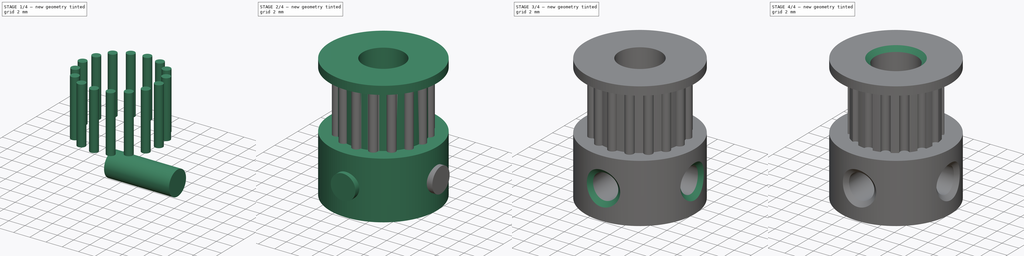
[diagram: build sequence overview — one tinted view per stage of 4, left to right]
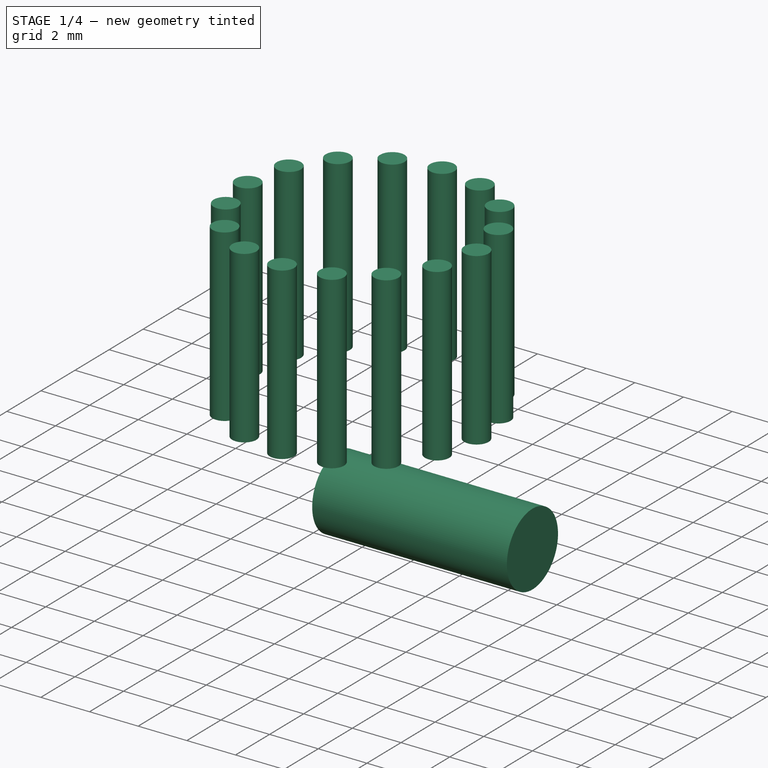
[diagram: stage 1 of 4 — iso view after this stage's code; geometry added in this stage tinted green]
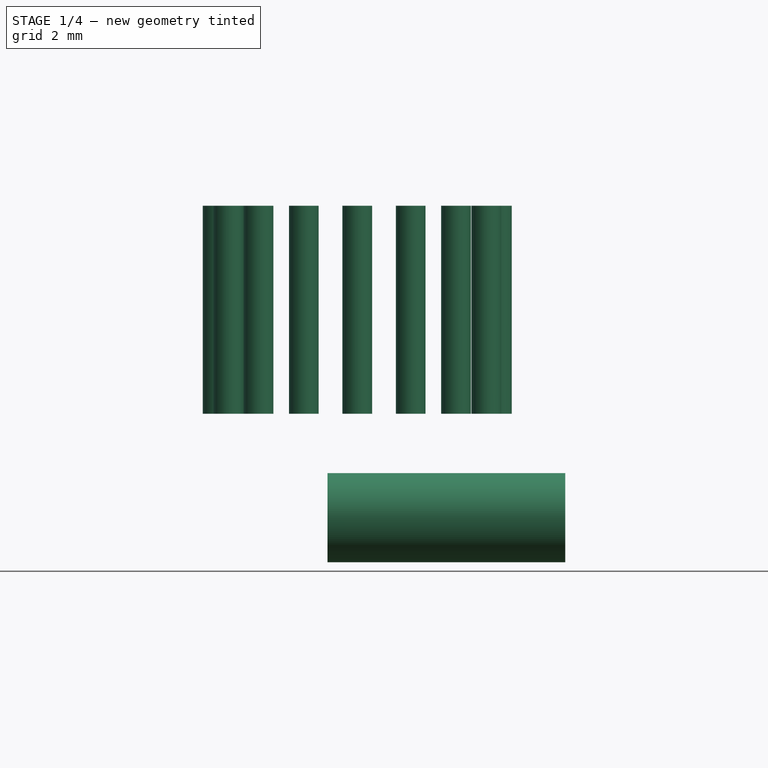
[diagram: stage 1 of 4 — front view after this stage's code; geometry added in this stage tinted green]
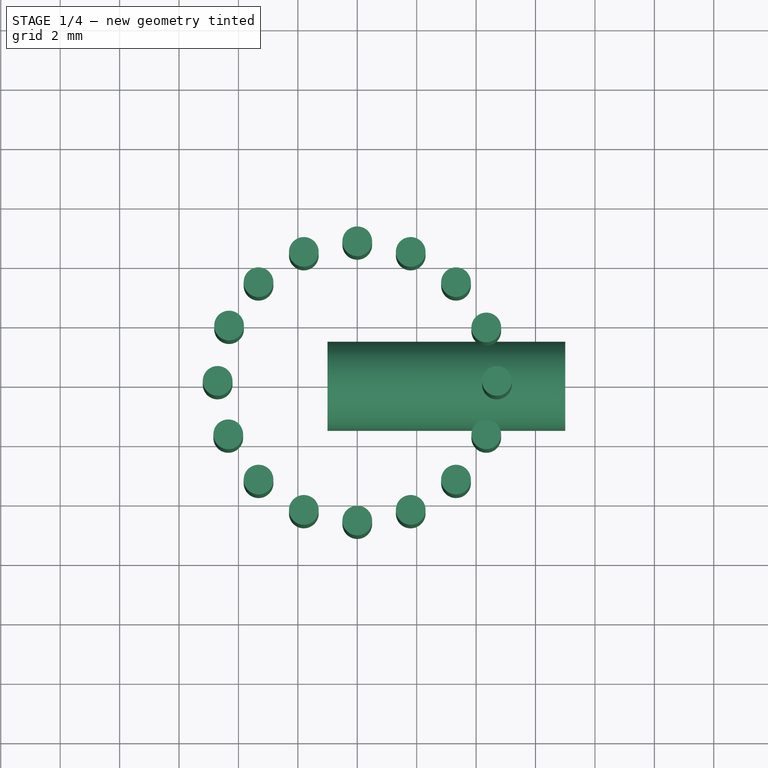
[diagram: stage 1 of 4 — top view after this stage's code; geometry added in this stage tinted green]
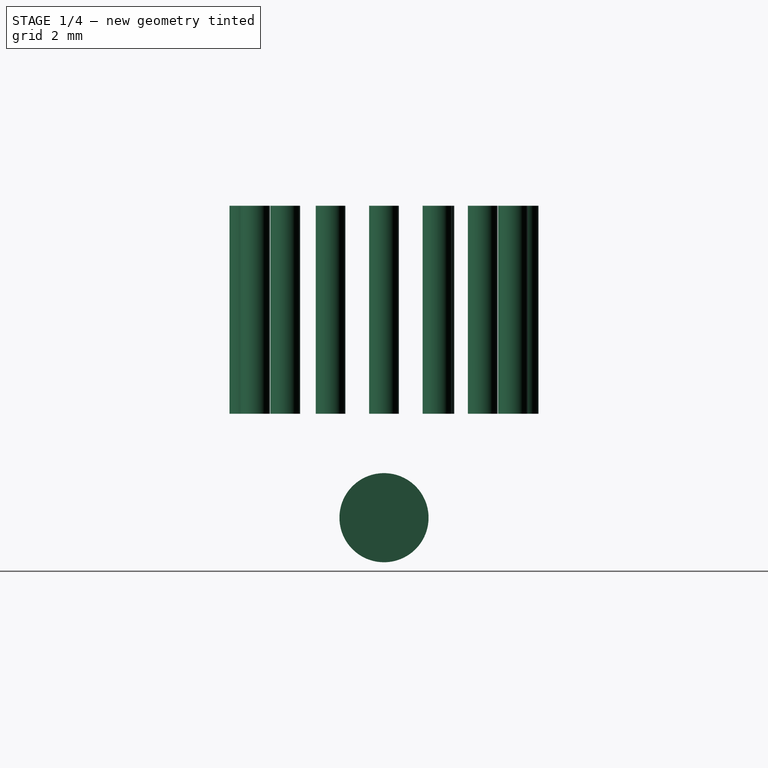
[diagram: stage 1 of 4 — right view after this stage's code; geometry added in this stage tinted green]
FCSTD DOCUMENT  (FreeCAD 0.16R6706 (Git))
Label: GT2_16T
License: All rights reserved
LicenseURL: http://en.wikipedia.org/wiki/All_rights_reserved
objects: Sketcher::SketchObject×5, PartDesign::Pad×3, Part::Cut×3, PartDesign::Chamfer×2, PartDesign::Revolution×1, PartDesign::Pocket×1
note: 20 computed .brp shape members not serialized (recipe doc carries the construction recipe); baked Part::Feature solids carry a one-line shape summary decoded from their .brp

FEATURE [Sketcher::SketchObject] Sketch003
  Placement = pos=(7,0,3.5) rot=(0.57735,0.57735,0.57735;2.0944rad)
  sketch-geometry (1):
    g0: Circle CenterX=0 CenterY=0 CenterZ=0 NormalX=0 NormalY=0 NormalZ=1 Radius=1.5
  constraints (2):
    c: Coincident(g0,g-1)
    c: Radius(g0) = 1.5
FEATURE [PartDesign::Pad] Pad001
  Length = 8
  Length2 = 100
  Placement = pos=(7,0,3.5) rot=(0.57735,0.57735,0.57735;2.0944rad)
  Reversed = true
  Sketch = -> Sketch003
  Type = 0
FEATURE [Sketcher::SketchObject] Sketch004
  Placement = pos=(0,0,14) rot=(0,0,1;0rad)
  sketch-geometry (16):
    g0: Circle CenterX=0 CenterY=4.7 CenterZ=0 NormalX=0 NormalY=0 NormalZ=1 Radius=0.5
    g1: Circle CenterX=0 CenterY=-4.7 CenterZ=0 NormalX=0 NormalY=0 NormalZ=1 Radius=0.5
    g2: Circle CenterX=4.7 CenterY=0 CenterZ=0 NormalX=0 NormalY=0 NormalZ=1 Radius=0.5
    g3: Circle CenterX=-4.7 CenterY=0 CenterZ=0 NormalX=0 NormalY=0 NormalZ=1 Radius=0.5
    g4: Circle CenterX=-3.3234 CenterY=3.3234 CenterZ=0 NormalX=0 NormalY=0 NormalZ=1 Radius=0.5
    g5: Circle CenterX=3.3234 CenterY=3.3234 CenterZ=0 NormalX=0 NormalY=0 NormalZ=1 Radius=0.5
    g6: Circle CenterX=-3.3234 CenterY=-3.3234 CenterZ=0 NormalX=0 NormalY=0 NormalZ=1 Radius=0.5
    g7: Circle CenterX=3.3234 CenterY=-3.3234 CenterZ=0 NormalX=0 NormalY=0 NormalZ=1 Radius=0.5
    g8: Circle CenterX=-1.79861 CenterY=4.34223 CenterZ=0 NormalX=0 NormalY=0 NormalZ=1 Radius=0.5
    g9: Circle CenterX=1.79861 CenterY=4.34223 CenterZ=0 NormalX=0 NormalY=0 NormalZ=1 Radius=0.5
    g10: Circle CenterX=4.34223 CenterY=1.79861 CenterZ=0 NormalX=0 NormalY=0 NormalZ=1 Radius=0.5
    g11: Circle CenterX=4.34223 CenterY=-1.79861 CenterZ=0 NormalX=0 NormalY=0 NormalZ=1 Radius=0.5
    g12: Circle CenterX=1.79861 CenterY=-4.34223 CenterZ=0 NormalX=0 NormalY=0 NormalZ=1 Radius=0.5
    g13: Circle CenterX=-1.79861 CenterY=-4.34223 CenterZ=0 NormalX=0 NormalY=0 NormalZ=1 Radius=0.5
    g14: Circle CenterX=-4.34223 CenterY=-1.79861 CenterZ=0 NormalX=0 NormalY=0 NormalZ=1 Radius=0.5
    g15: Circle CenterX=-4.31471 CenterY=1.86367 CenterZ=0 NormalX=0 NormalY=0 NormalZ=1 Radius=0.5
  constraints (16):
    c: Radius(g0) = 0.5
    c: Equal(g0,g8)
    c: Equal(g8,g4)
    c: Equal(g4,g15)
    c: Equal(g15,g3)
    c: Equal(g3,g14)
    c: Equal(g14,g6)
    c: Equal(g6,g13)
    c: Equal(g13,g1)
    c: Equal(g1,g12)
    c: Equal(g12,g7)
    c: Equal(g7,g11)
    c: Equal(g11,g2)
    c: Equal(g2,g10)
    c: Equal(g10,g5)
    c: Equal(g5,g9)
FEATURE [PartDesign::Pad] Pad002
  Length = 7
  Length2 = 100
  Placement = pos=(0,0,14) rot=(0,0,1;0rad)
  Reversed = true
  Sketch = -> Sketch004
  Type = 0
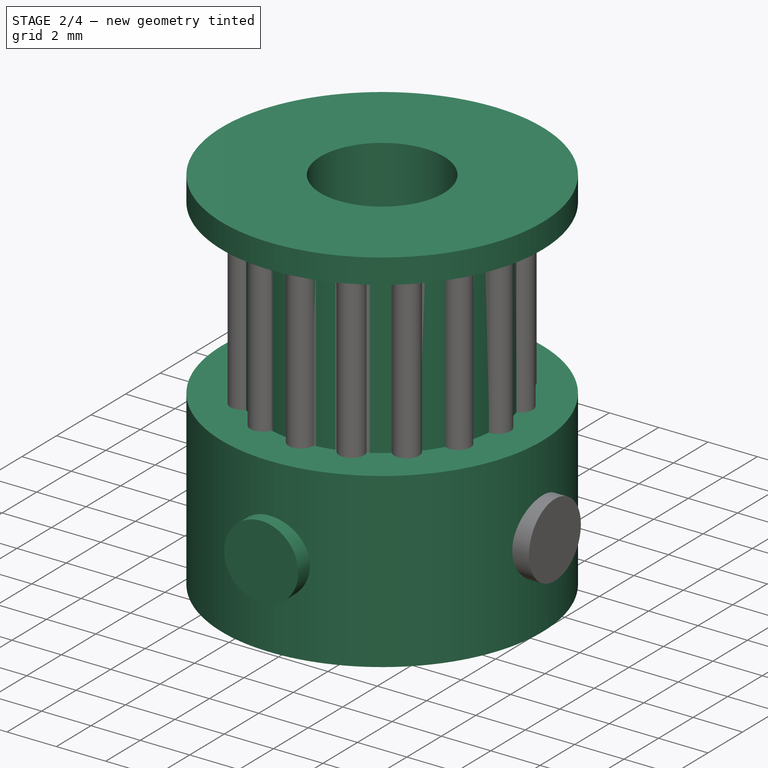
[diagram: stage 2 of 4 — iso view after this stage's code; geometry added in this stage tinted green]
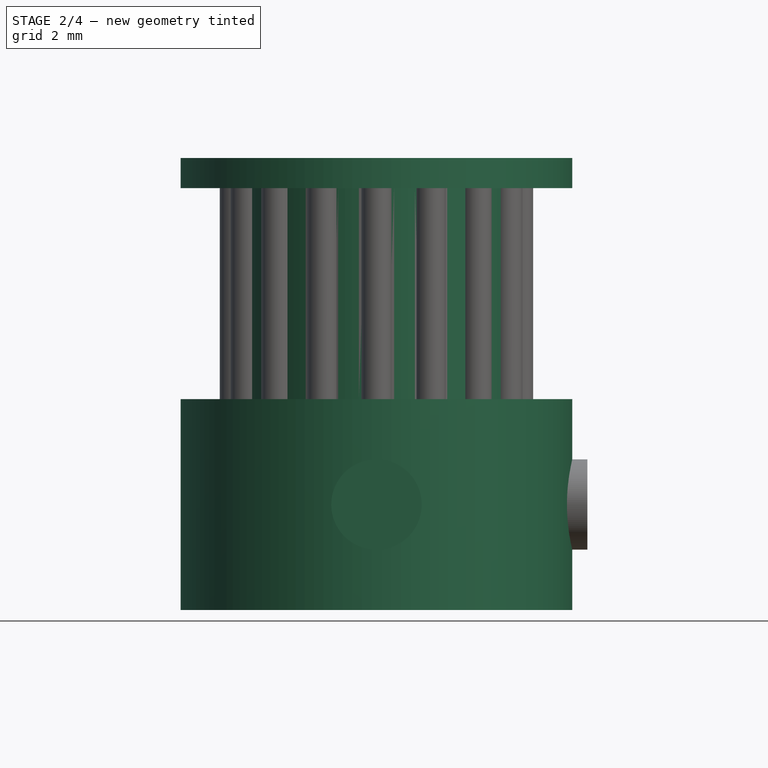
[diagram: stage 2 of 4 — front view after this stage's code; geometry added in this stage tinted green]
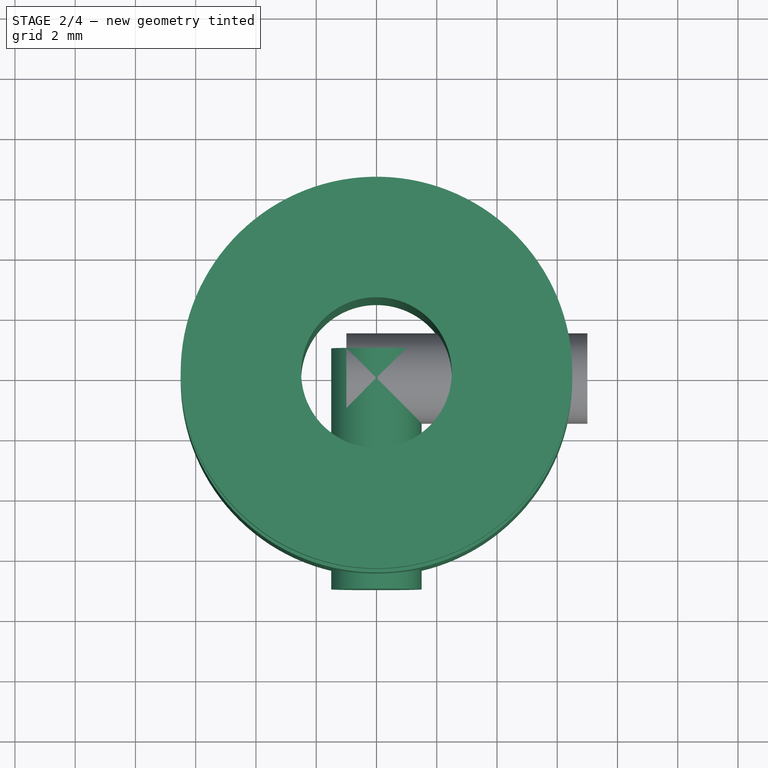
[diagram: stage 2 of 4 — top view after this stage's code; geometry added in this stage tinted green]
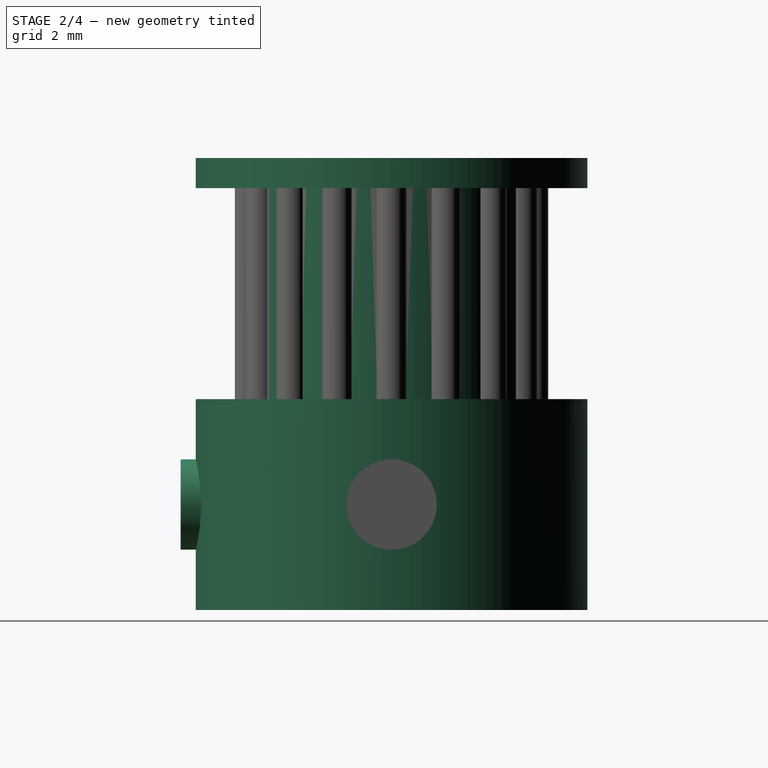
[diagram: stage 2 of 4 — right view after this stage's code; geometry added in this stage tinted green]
FEATURE [Sketcher::SketchObject] Sketch
  Placement = pos=(0,0,0) rot=(-1,0,0;4.71239rad)
  sketch-geometry (8):
    g0: LineSegment StartX=0 StartY=0 StartZ=0 EndX=6.5 EndY=0 EndZ=0
    g1: LineSegment StartX=6.5 StartY=0 StartZ=0 EndX=6.5 EndY=7 EndZ=0
    g2: LineSegment StartX=4.7 StartY=14 StartZ=0 EndX=4.7 EndY=7 EndZ=0
    g3: LineSegment StartX=4.7 StartY=7 StartZ=0 EndX=6.5 EndY=7 EndZ=0
    g4: LineSegment StartX=0 StartY=15 StartZ=0 EndX=6.5 EndY=15 EndZ=0
    g5: LineSegment StartX=6.5 StartY=15 StartZ=0 EndX=6.5 EndY=14 EndZ=0
    g6: LineSegment StartX=6.5 StartY=14 StartZ=0 EndX=4.7 EndY=14 EndZ=0
    g7: LineSegment StartX=0 StartY=15 StartZ=0 EndX=0 EndY=0 EndZ=0
  constraints (15):
    c: PointOnObject(g0,g-1)
    c: Horizontal(g0)
    c: Coincident(g1,g0)
    c: Vertical(g1)
    c: Vertical(g2)
    c: Coincident(g3,g2)
    c: Coincident(g3,g1)
    c: Horizontal(g4)
    c: Coincident(g4,g5)
    c: Vertical(g5)
    c: Coincident(g5,g6)
    c: Horizontal(g6)
    c: Vertical(g7)
    c: PointOnObject(g7,g4)
    c: Coincident(g4,g7)
FEATURE [PartDesign::Revolution] Revolution
  Angle = 360
  Axis = (0,0,1)
  Base = (0,0,0)
  Placement = pos=(0,0,0) rot=(-1,0,0;4.71239rad)
  ReferenceAxis = -> Sketch [V_Axis]
  Reversed = true
  Sketch = -> Sketch
FEATURE [Sketcher::SketchObject] Sketch001
  Placement = pos=(0,0,15) rot=(0,0,1;3.14159rad)
  Support = -> Revolution [Face7]
  sketch-geometry (1):
    g0: Circle CenterX=0 CenterY=0 CenterZ=0 NormalX=0 NormalY=0 NormalZ=1 Radius=2.5
  constraints (2):
    c: Coincident(g0,g-1)
    c: Radius(g0) = 2.5
FEATURE [PartDesign::Pocket] Pocket
  Length = 15
  Placement = pos=(0,0,0) rot=(-1,0,0;4.71239rad)
  Sketch = -> Sketch001
  Type = 0
FEATURE [Sketcher::SketchObject] Sketch002
  Placement = pos=(0,-7,3.5) rot=(-1,0,0;4.71239rad)
  sketch-geometry (1):
    g0: Circle CenterX=0 CenterY=0 CenterZ=0 NormalX=0 NormalY=0 NormalZ=1 Radius=1.5
  constraints (2):
    c: Coincident(g0,g-1)
    c: Radius(g0) = 1.5
FEATURE [PartDesign::Pad] Pad
  Length = 8
  Length2 = 100
  Placement = pos=(0,-7,3.5) rot=(-1,0,0;4.71239rad)
  Reversed = true
  Sketch = -> Sketch002
  Type = 0
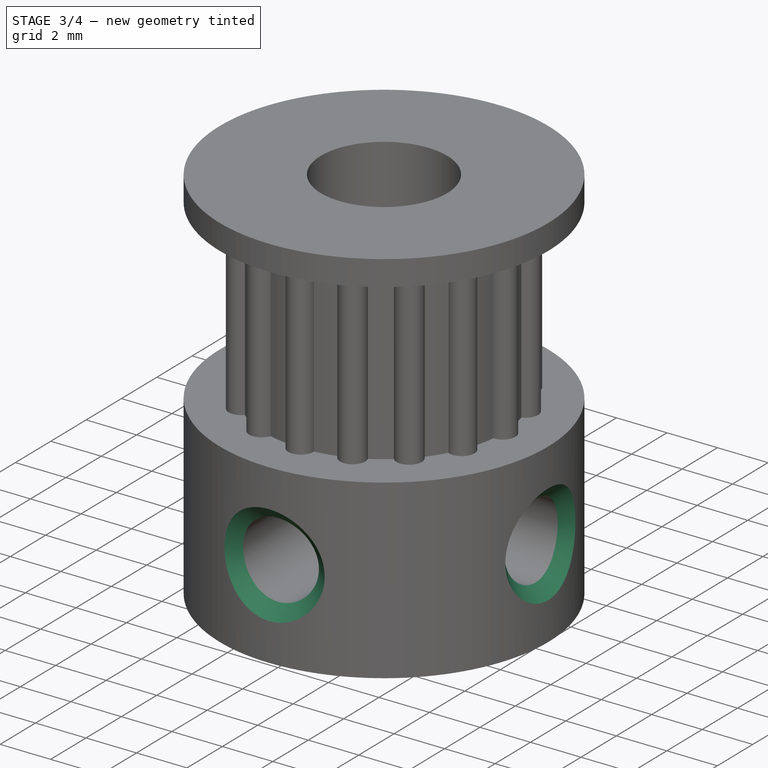
[diagram: stage 3 of 4 — iso view after this stage's code; geometry added in this stage tinted green]
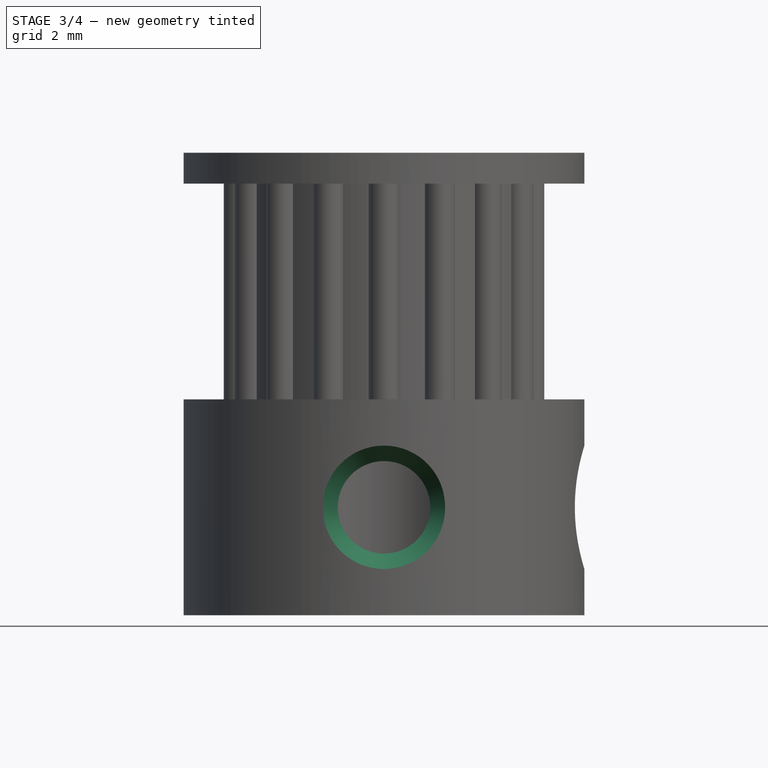
[diagram: stage 3 of 4 — front view after this stage's code; geometry added in this stage tinted green]
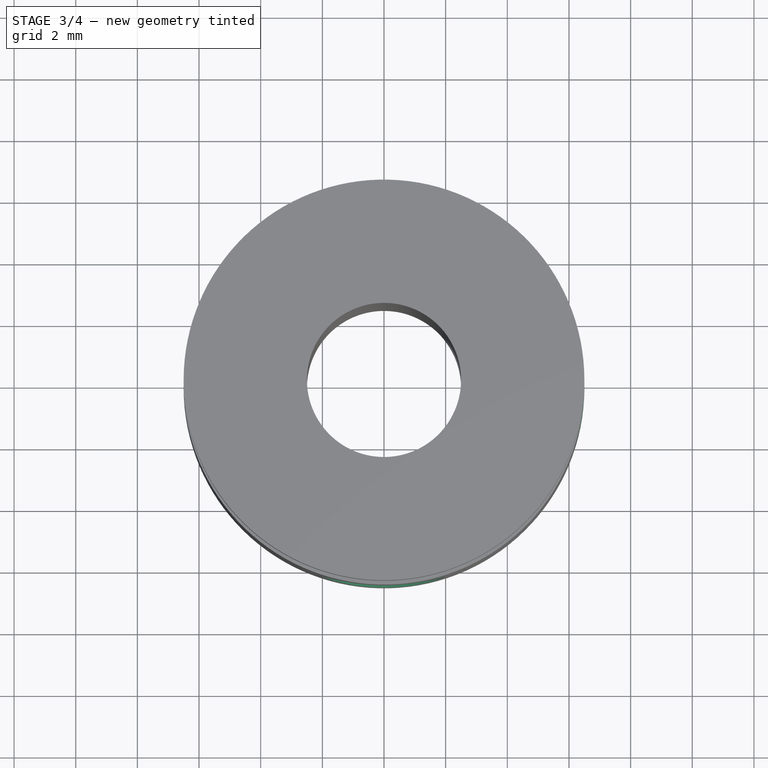
[diagram: stage 3 of 4 — top view after this stage's code; geometry added in this stage tinted green]
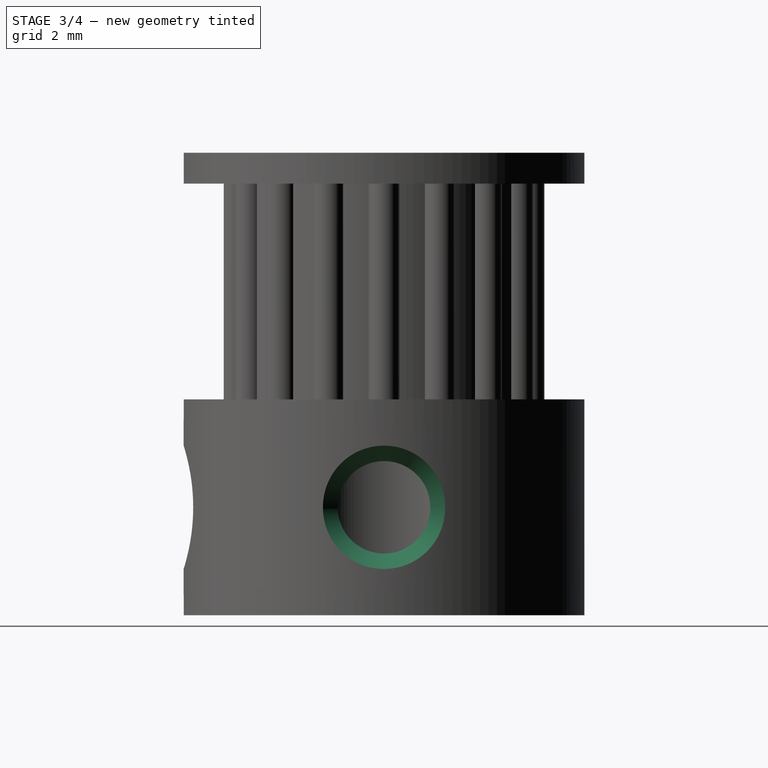
[diagram: stage 3 of 4 — right view after this stage's code; geometry added in this stage tinted green]
FEATURE [Part::Cut] Cut
  Base = -> Pocket
  Tool = -> Pad
FEATURE [Part::Cut] Cut001
  Base = -> Cut
  Tool = -> Pad001
FEATURE [PartDesign::Chamfer] Chamfer
  Base = -> Cut001 [Edge11,Edge10,Edge8,Edge9,Edge4,Edge5]
  Size = 0.5
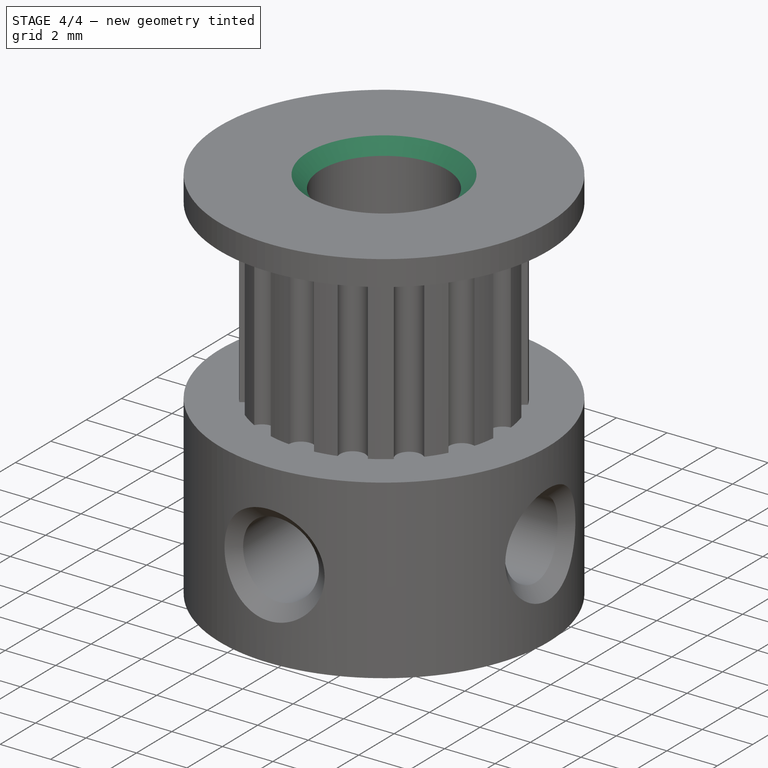
[diagram: stage 4 of 4 — iso view after this stage's code; geometry added in this stage tinted green]
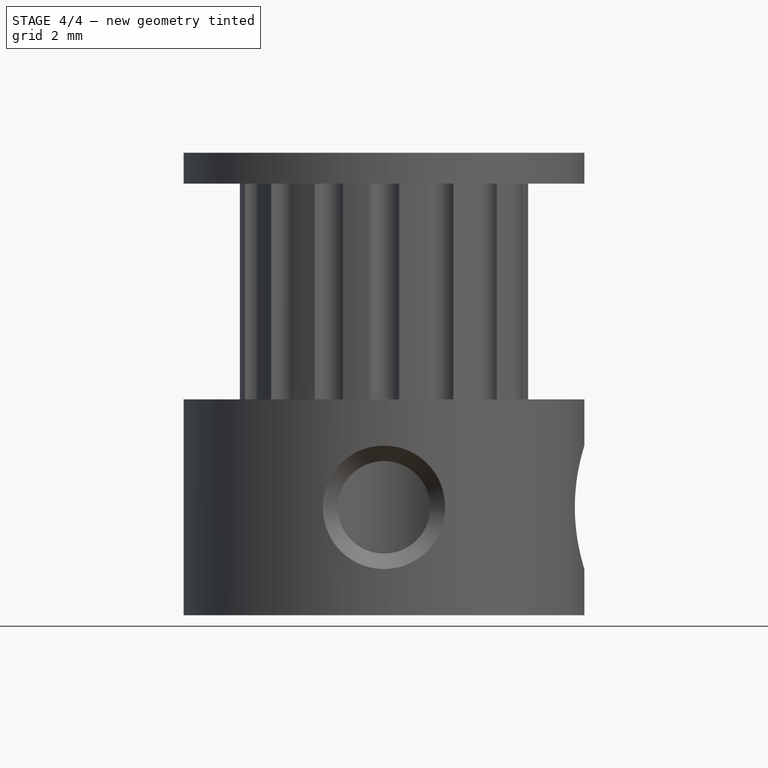
[diagram: stage 4 of 4 — front view after this stage's code; geometry added in this stage tinted green]
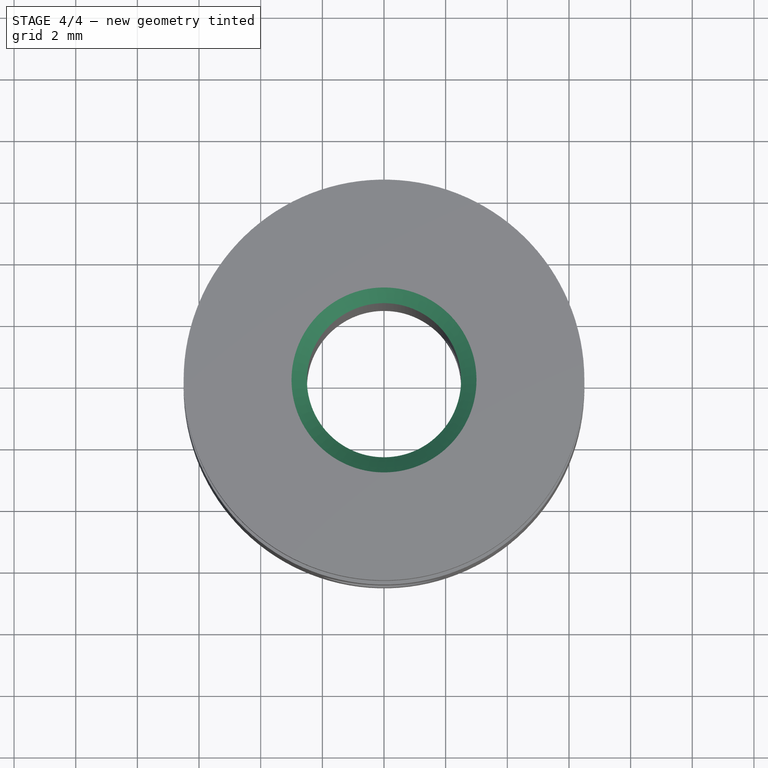
[diagram: stage 4 of 4 — top view after this stage's code; geometry added in this stage tinted green]
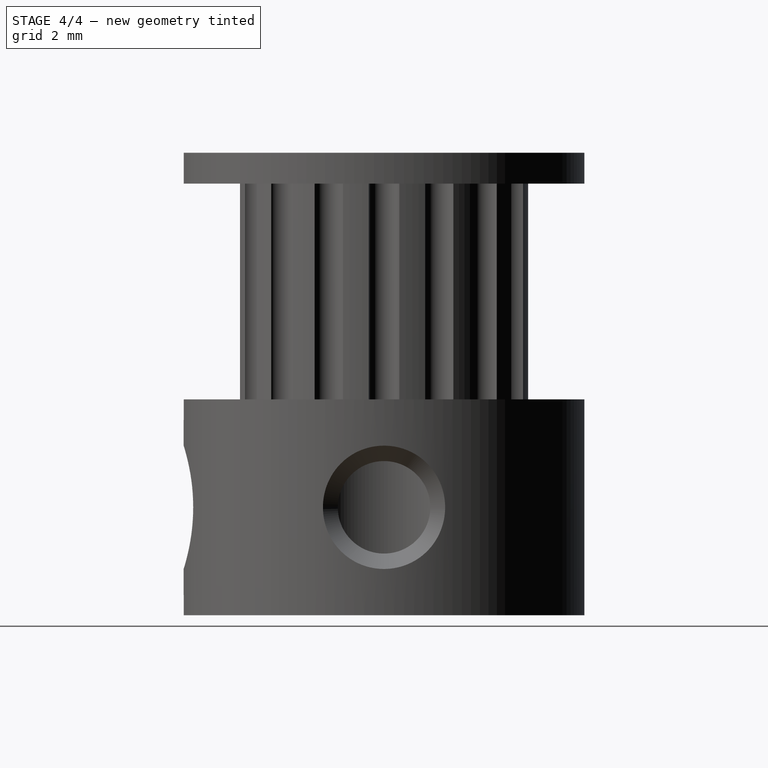
[diagram: stage 4 of 4 — right view after this stage's code; geometry added in this stage tinted green]
FEATURE [PartDesign::Chamfer] Chamfer001
  Base = -> Chamfer [Edge22]
  Size = 0.5
FEATURE [Part::Cut] Cut002
  Base = -> Chamfer001
  Tool = -> Pad002
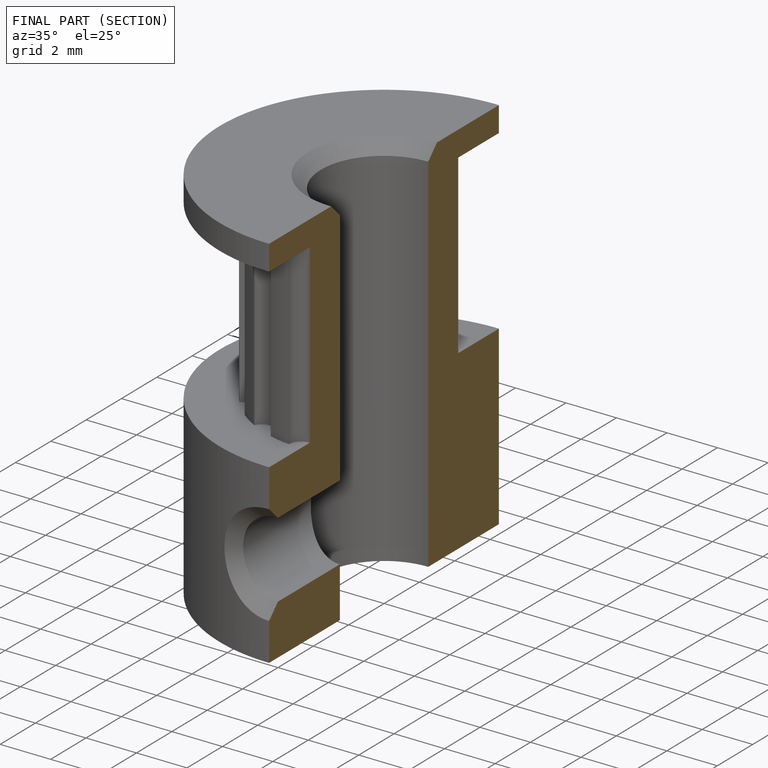
[diagram: finished part — half-section view (interior)]
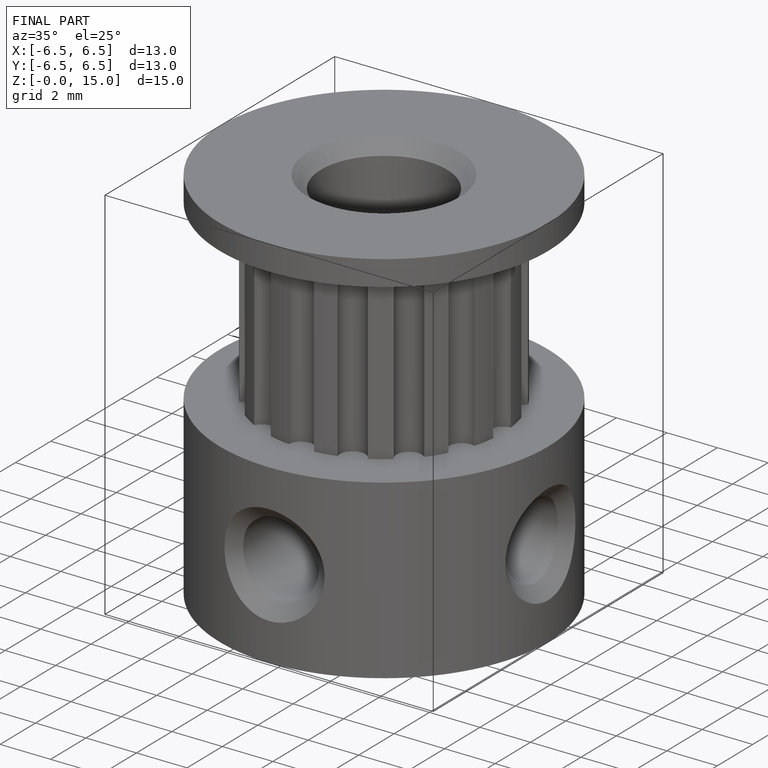
[diagram: finished part — iso view with bounding-box wireframe]
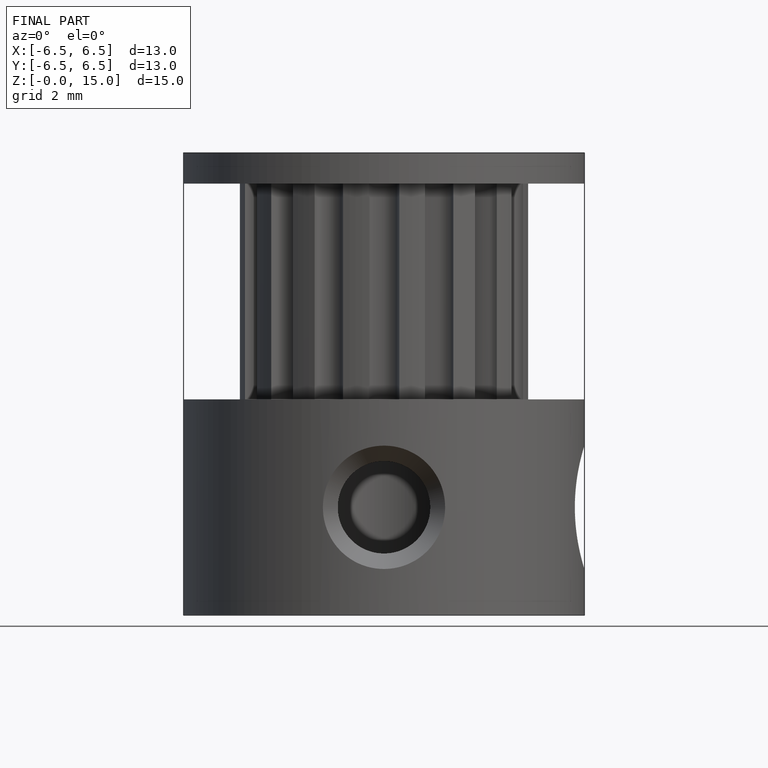
[diagram: finished part — front view with bounding-box wireframe]
